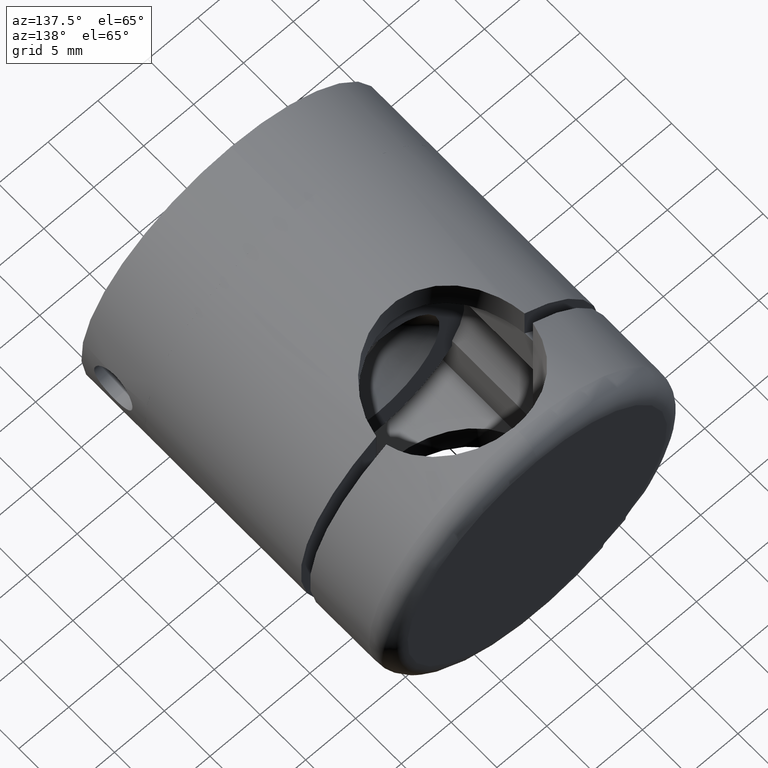
[diagram: clean part render]
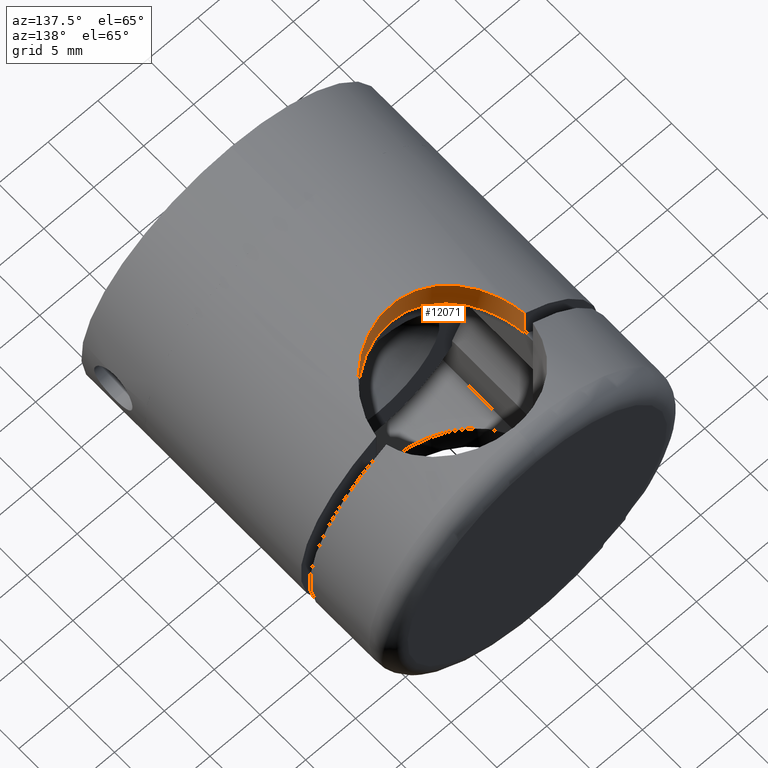
[diagram: same view with one face highlighted and labeled with its STEP entity id]
A machine part, auxiliary view. The second image highlights one B-rep face of the part: STEP entity #12071.
In plain terms, the highlighted cylindrical surface (partial cylindrical patch) has radius 7.5 mm, axis along (0, 0, 1).
Its self-contained STEP definition (entity closure, byte-faithful):
#162 = VERTEX_POINT ( 'NONE', #11002 ) ;
#305 = CARTESIAN_POINT ( 'NONE',  ( -7.433034373659253000, 0.0000000000000000000, 13.02881422079538300 ) ) ;
#383 = CARTESIAN_POINT ( 'NONE',  ( 2.454507526441689300, 6.090559381606842000, 14.79936083810742400 ) ) ;
#399 = CARTESIAN_POINT ( 'NONE',  ( -4.287906709055678600, 5.169351422859433500, 11.32184140605151700 ) ) ;
#444 = CARTESIAN_POINT ( 'NONE',  ( 3.081357233003476200, 5.841471669872911200, 14.68155682345833500 ) ) ;
#460 = CARTESIAN_POINT ( 'NONE',  ( -6.704379315736642500, 2.369065749826449400, 10.07358670783023800 ) ) ;
#619 = VECTOR ( 'NONE', #13140, 1000.000000000000000 ) ;
#675 = CARTESIAN_POINT ( 'NONE',  ( 7.371539659904849300, 0.4570923211348388900, 13.06389740744527500 ) ) ;
#690 = CARTESIAN_POINT ( 'NONE',  ( 0.9103202596978043900, 6.459001097932526700, 12.07444560178374700 ) ) ;
#747 = CARTESIAN_POINT ( 'NONE',  ( 6.385953543325390700, 2.958148152001800900, 10.28071647677968600 ) ) ;
#1056 = ORIENTED_EDGE ( 'NONE', *, *, #10695, .F. ) ;
#1254 = CARTESIAN_POINT ( 'NONE',  ( -7.433034373659253000, 0.0000000000000000000, -15.00000000000000000 ) ) ;
#1442 = ORIENTED_EDGE ( 'NONE', *, *, #4738, .F. ) ;
#1741 = CARTESIAN_POINT ( 'NONE',  ( 3.485431127852573100, 5.644717214453359100, 14.59090960189991300 ) ) ;
#1789 = CARTESIAN_POINT ( 'NONE',  ( 4.617013203556878900, 4.926937240679813500, 14.27609805589279900 ) ) ;
#1961 = CARTESIAN_POINT ( 'NONE',  ( -2.254629813134045900, 6.167207385889926600, 14.83573182107816300 ) ) ;
#2086 = CARTESIAN_POINT ( 'NONE',  ( 3.106584920228745900, 5.830092861634216000, 11.69630516733490600 ) ) ;
#2147 = CARTESIAN_POINT ( 'NONE',  ( 6.978373296587281300, 1.757275678786579300, 9.885540788002922200 ) ) ;
#2577 = B_SPLINE_CURVE_WITH_KNOTS ( 'NONE', 3,
 ( #12287, #16381, #12453, #12400, #4344, #4517, #460, #13687, #16326, #13629, #14971, #7010, #399, #9695, #11016, #12342, #4408, #9754, #8619, #3362, #690, #7230, #5904, #9856, #7342, #12635, #2086, #4690, #13967, #6012, #16683, #9919, #15308, #8680, #15196, #16742, #747, #13850, #10033, #2147, #11355, #15369, #16551, #3411 ),
 .UNSPECIFIED., .F., .F.,
 ( 4, 2, 2, 2, 2, 2, 2, 2, 2, 2, 2, 2, 2, 2, 2, 2, 2, 2, 2, 2, 2, 4 ),
 ( 0.0000000000000000000, 0.001381553282009188100, 0.002072329923013783400, 0.002763106564018378900, 0.004144659846027567600, 0.005526213128036757700, 0.006907766410045946900, 0.008289319692055137000, 0.009670872974064328000, 0.01105242625607351700, 0.01243397953808270600, 0.01312475617908730200, 0.01381553282009189900, 0.01450630946109649500, 0.01519708610210109200, 0.01657863938411028100, 0.01726941602511487500, 0.01796019266611947200, 0.01934174594812865600, 0.02003252258913325300, 0.02072329923013784700, 0.02210485251214703400 ),
 .UNSPECIFIED. ) ;
#3115 = CARTESIAN_POINT ( 'NONE',  ( 5.590732769843328700, 4.018891035258167000, 13.92240403225032700 ) ) ;
#3169 = CARTESIAN_POINT ( 'NONE',  ( -7.433034373659253000, 0.0000000000000000000, 13.02881422079538300 ) ) ;
#3247 = VECTOR ( 'NONE', #15234, 1000.000000000000000 ) ;
#3285 = CARTESIAN_POINT ( 'NONE',  ( -1.821521555345696300, 6.289625278845708300, 14.89575064599112000 ) ) ;
#3336 = CARTESIAN_POINT ( 'NONE',  ( 0.0000000000000000000, -1.000000000000000900, -15.00000000000000000 ) ) ;
#3362 = CARTESIAN_POINT ( 'NONE',  ( 0.4512396511243006400, 6.500644241078809700, 12.10039932273647000 ) ) ;
#3391 = DIRECTION ( 'NONE',  ( 1.000000000000000000, 0.0000000000000000000, 0.0000000000000000000 ) ) ;
#3411 = CARTESIAN_POINT ( 'NONE',  ( 7.433034373659253000, 0.0000000000000000000, 9.547774609824008600 ) ) ;
#3691 = EDGE_CURVE ( 'NONE', #162, #4016, #2577, .T. ) ;
#4016 = VERTEX_POINT ( 'NONE', #12044 ) ;
#4307 = CYLINDRICAL_SURFACE ( 'NONE', #5210, 7.500000000000000000 ) ;
#4344 = CARTESIAN_POINT ( 'NONE',  ( -6.979226702225446400, 1.755088937874512000, 9.884935751312431400 ) ) ;
#4408 = CARTESIAN_POINT ( 'NONE',  ( -1.844509065358021800, 6.284116486468724000, 11.96719748488499000 ) ) ;
#4441 = CARTESIAN_POINT ( 'NONE',  ( 4.260027718222359800, 5.188958396447426400, 14.38784380773072200 ) ) ;
#4517 = CARTESIAN_POINT ( 'NONE',  ( -6.802467336872967800, 2.166474150760043600, 10.00739717905748100 ) ) ;
#4620 = CARTESIAN_POINT ( 'NONE',  ( 0.9018572914626914500, 6.459649908640918700, 14.97969362655243900 ) ) ;
#4690 = CARTESIAN_POINT ( 'NONE',  ( 3.512054756203036200, 5.630724677934601600, 11.58101445571368900 ) ) ;
#4738 = EDGE_CURVE ( 'NONE', #10849, #5627, #17077, .T. ) ;
#5121 = LINE ( 'NONE', #11222, #3247 ) ;
#5210 = AXIS2_PLACEMENT_3D ( 'NONE', #3336, #12607, #3391 ) ;
#5627 = VERTEX_POINT ( 'NONE', #10349 ) ;
#5727 = CARTESIAN_POINT ( 'NONE',  ( -6.706805909233553500, 2.364343839977608200, 13.41762833829743700 ) ) ;
#5837 = CARTESIAN_POINT ( 'NONE',  ( -7.269735469085090600, 0.8980109817158853400, 13.12158371556265000 ) ) ;
#5904 = CARTESIAN_POINT ( 'NONE',  ( 1.820740294575647500, 6.279237296299610800, 11.96431512509023400 ) ) ;
#5942 = CARTESIAN_POINT ( 'NONE',  ( 1.802127842783203000, 6.283818584592300900, 14.89298984979847700 ) ) ;
#6012 = CARTESIAN_POINT ( 'NONE',  ( 4.281616437942682700, 5.173871608858009500, 11.32429740889832500 ) ) ;
#7010 = CARTESIAN_POINT ( 'NONE',  ( -4.640208607627381600, 4.908487579418744100, 11.18069312086736200 ) ) ;
#7049 = CARTESIAN_POINT ( 'NONE',  ( -5.594357989546198300, 4.014793026553872900, 13.92093376388389500 ) ) ;
#7105 = CARTESIAN_POINT ( 'NONE',  ( 6.988910178478321600, 1.758478929428913600, 13.27330242586715900 ) ) ;
#7230 = CARTESIAN_POINT ( 'NONE',  ( 1.594801879411987800, 6.332151938821762200, 11.99663856489961900 ) ) ;
#7342 = CARTESIAN_POINT ( 'NONE',  ( 2.476931936827229100, 6.082799924265901700, 11.84574986285529800 ) ) ;
#8334 = CARTESIAN_POINT ( 'NONE',  ( 2.239964844302980000, 6.161301238690727500, 14.83345438271954800 ) ) ;
#8381 = CARTESIAN_POINT ( 'NONE',  ( -7.061022049355219800, 1.538177000883971900, 13.23435759178614600 ) ) ;
#8438 = CARTESIAN_POINT ( 'NONE',  ( 0.4485332192687759800, 6.500461576475863100, 15.00023078814744600 ) ) ;
#8447 = FACE_OUTER_BOUND ( 'NONE', #12643, .T. ) ;
#8494 = CARTESIAN_POINT ( 'NONE',  ( -5.285270702362500300, 4.339607343499515900, 14.04242242306369600 ) ) ;
#8619 = CARTESIAN_POINT ( 'NONE',  ( -0.4724070979116879500, 6.499340823553638700, 12.09959141980714400 ) ) ;
#8680 = CARTESIAN_POINT ( 'NONE',  ( 5.593216513542786900, 4.001433164880639400, 10.73101403653626200 ) ) ;
#8692 = LINE ( 'NONE', #1254, #619 ) ;
#9681 = CARTESIAN_POINT ( 'NONE',  ( 2.875204067168545900, 5.930645071967627600, 14.72341298700827900 ) ) ;
#9695 = CARTESIAN_POINT ( 'NONE',  ( -3.530245071645919300, 5.632074385772681600, 11.58048386309773300 ) ) ;
#9742 = CARTESIAN_POINT ( 'NONE',  ( 3.684249379242929400, 5.536556207957905200, 14.54186294497605700 ) ) ;
#9754 = CARTESIAN_POINT ( 'NONE',  ( -0.9427413185010404800, 6.454649923841113700, 12.07175497352462700 ) ) ;
#9795 = CARTESIAN_POINT ( 'NONE',  ( -7.371552118982877200, 0.4569997123795623800, 13.06389029944958000 ) ) ;
#9856 = CARTESIAN_POINT ( 'NONE',  ( 2.261244462426558000, 6.154660321585917700, 11.88893204261424000 ) ) ;
#9899 = CARTESIAN_POINT ( 'NONE',  ( -4.621271761972298700, 4.923625602787772900, 14.27471755261766800 ) ) ;
#9919 = CARTESIAN_POINT ( 'NONE',  ( 5.130938656266875100, 4.474663636909650900, 10.95975385441399100 ) ) ;
#10033 = CARTESIAN_POINT ( 'NONE',  ( 6.801216285787243800, 2.169182870913697300, 10.00824997548193800 ) ) ;
#10349 = CARTESIAN_POINT ( 'NONE',  ( 7.433034373659253000, 0.0000000000000000000, 13.02881422079538300 ) ) ;
#10695 = EDGE_CURVE ( 'NONE', #162, #10849, #8692, .T. ) ;
#10849 = VERTEX_POINT ( 'NONE', #305 ) ;
#11000 = CARTESIAN_POINT ( 'NONE',  ( -3.504591401709834700, 5.645732149465732000, 14.59016996309915500 ) ) ;
#11002 = CARTESIAN_POINT ( 'NONE',  ( -7.433034373659253000, 0.0000000000000000000, 9.547774609824008600 ) ) ;
#11016 = CARTESIAN_POINT ( 'NONE',  ( -3.120889328124960100, 5.834713795883161900, 11.69855704201667200 ) ) ;
#11054 = CARTESIAN_POINT ( 'NONE',  ( 5.281274963558811200, 4.343550386780559200, 14.04392827461645300 ) ) ;
#11222 = CARTESIAN_POINT ( 'NONE',  ( 7.433034373659253000, 0.0000000000000000000, -15.00000000000000000 ) ) ;
#11355 = CARTESIAN_POINT ( 'NONE',  ( 7.057675012871475100, 1.547514016276543100, 9.828872094880608800 ) ) ;
#11400 = CARTESIAN_POINT ( 'NONE',  ( 7.433034373659253000, 0.0000000000000000000, 13.02881422079538300 ) ) ;
#12044 = CARTESIAN_POINT ( 'NONE',  ( 7.433034373659253000, 0.0000000000000000000, 9.547774609824008600 ) ) ;
#12071 = ADVANCED_FACE ( 'NONE', ( #8447 ), #4307, .F. ) ;
#12287 = CARTESIAN_POINT ( 'NONE',  ( -7.433034373659253000, 0.0000000000000000000, 9.547774609824008600 ) ) ;
#12342 = CARTESIAN_POINT ( 'NONE',  ( -2.279664997857652000, 6.159356840358118000, 11.89114437559585200 ) ) ;
#12387 = CARTESIAN_POINT ( 'NONE',  ( 6.141799977416648700, 3.327106789183706900, 13.68824020750751000 ) ) ;
#12400 = CARTESIAN_POINT ( 'NONE',  ( -7.058358826263528000, 1.545592304792543900, 9.828379518017310800 ) ) ;
#12453 = CARTESIAN_POINT ( 'NONE',  ( -7.267922950506672000, 0.9050391060404532300, 9.675597607765430700 ) ) ;
#12552 = CARTESIAN_POINT ( 'NONE',  ( -0.4638388370897875700, 6.499530614790875100, 14.99976530748668700 ) ) ;
#12607 = DIRECTION ( 'NONE',  ( -0.0000000000000000000, -0.0000000000000000000, 1.000000000000000000 ) ) ;
#12635 = CARTESIAN_POINT ( 'NONE',  ( 2.899602612185831200, 5.920516691567248000, 11.74943770247820000 ) ) ;
#12643 = EDGE_LOOP ( 'NONE', ( #1056, #14486, #13798, #1442 ) ) ;
#13140 = DIRECTION ( 'NONE',  ( -0.0000000000000000000, -0.0000000000000000000, 1.000000000000000000 ) ) ;
#13469 = EDGE_CURVE ( 'NONE', #5627, #4016, #5121, .T. ) ;
#13629 = CARTESIAN_POINT ( 'NONE',  ( -5.601634317130489600, 4.006335720115676400, 10.72980249393706000 ) ) ;
#13687 = CARTESIAN_POINT ( 'NONE',  ( -6.387786704836729600, 2.955174478734803300, 10.27957127954841500 ) ) ;
#13725 = CARTESIAN_POINT ( 'NONE',  ( 6.385256789243127800, 2.959327451426121000, 13.57512415531077800 ) ) ;
#13777 = CARTESIAN_POINT ( 'NONE',  ( -6.982046201704013900, 1.747983388432222000, 13.27633011747889900 ) ) ;
#13798 = ORIENTED_EDGE ( 'NONE', *, *, #13469, .F. ) ;
#13833 = CARTESIAN_POINT ( 'NONE',  ( -4.265662807184604300, 5.184823159216672500, 14.38608151167166600 ) ) ;
#13850 = CARTESIAN_POINT ( 'NONE',  ( 6.702901141645744700, 2.372009956687625400, 10.07457193972448700 ) ) ;
#13900 = CARTESIAN_POINT ( 'NONE',  ( 1.577532041899896800, 6.335790583856103300, 14.91852990702046900 ) ) ;
#13967 = CARTESIAN_POINT ( 'NONE',  ( 3.710195494336569100, 5.521823509179438500, 11.51889478967124000 ) ) ;
#14486 = ORIENTED_EDGE ( 'NONE', *, *, #3691, .T. ) ;
#14971 = CARTESIAN_POINT ( 'NONE',  ( -5.296296914780158200, 4.328320597424202300, 10.88525027621322900 ) ) ;
#15068 = CARTESIAN_POINT ( 'NONE',  ( 6.808414343375437400, 2.176991070354392700, 13.36790911943963400 ) ) ;
#15125 = CARTESIAN_POINT ( 'NONE',  ( -6.805214662091630700, 2.160606788052258100, 13.36783318095569400 ) ) ;
#15183 = CARTESIAN_POINT ( 'NONE',  ( -6.388103578211718600, 2.955041413808474600, 13.57380254716004900 ) ) ;
#15196 = CARTESIAN_POINT ( 'NONE',  ( 5.736684297029831300, 3.836132015414672700, 10.65479257470046900 ) ) ;
#15234 = DIRECTION ( 'NONE',  ( 0.0000000000000000000, 0.0000000000000000000, -1.000000000000000000 ) ) ;
#15237 = CARTESIAN_POINT ( 'NONE',  ( -0.9279062625338172500, 6.456243521407138500, 14.97799446027686100 ) ) ;
#15308 = CARTESIAN_POINT ( 'NONE',  ( 5.290419277999674800, 4.320701883502318100, 10.88348276438546800 ) ) ;
#15369 = CARTESIAN_POINT ( 'NONE',  ( 7.267667455086091800, 0.9061549685232079800, 9.675795716198994300 ) ) ;
#16326 = CARTESIAN_POINT ( 'NONE',  ( -6.146124214716414800, 3.320516346761881900, 10.42746976591293300 ) ) ;
#16381 = CARTESIAN_POINT ( 'NONE',  ( -7.370873389609881700, 0.4620447311394678700, 9.596167533832090900 ) ) ;
#16421 = CARTESIAN_POINT ( 'NONE',  ( 7.269481033751776300, 0.8996623349596458700, 13.12174029126060900 ) ) ;
#16483 = CARTESIAN_POINT ( 'NONE',  ( -6.144177921718754700, 3.323663733529298400, 13.68715879355192500 ) ) ;
#16539 = CARTESIAN_POINT ( 'NONE',  ( -3.094862868402032500, 5.846461942668952400, 14.68346410378049400 ) ) ;
#16551 = CARTESIAN_POINT ( 'NONE',  ( 7.370797457541449700, 0.4626091368141630500, 9.596226647677745800 ) ) ;
#16683 = CARTESIAN_POINT ( 'NONE',  ( 4.635964713893531400, 4.911998384491692300, 11.18252097455661700 ) ) ;
#16742 = CARTESIAN_POINT ( 'NONE',  ( 6.144316000566987200, 3.322991934113022500, 10.42851796852745100 ) ) ;
#17077 = B_SPLINE_CURVE_WITH_KNOTS ( 'NONE', 3,
 ( #3169, #9795, #5837, #8381, #13777, #15125, #5727, #15183, #16483, #7049, #8494, #9899, #13833, #11000, #16539, #1961, #3285, #15237, #12552, #8438, #4620, #13900, #5942, #8334, #383, #9681, #444, #1741, #9742, #4441, #1789, #11054, #3115, #12387, #13725, #15068, #7105, #16421, #675, #11400 ),
 .UNSPECIFIED., .F., .F.,
 ( 4, 2, 2, 2, 2, 2, 2, 2, 2, 2, 2, 2, 2, 2, 2, 2, 2, 2, 2, 4 ),
 ( 0.0000000000000000000, 0.001365088356597057400, 0.002047632534895586800, 0.002730176713194116600, 0.004095265069791177000, 0.005460353426388237500, 0.006825441782985297100, 0.008190530139582357500, 0.009555618496179420600, 0.01092070685277648400, 0.01228579520937354500, 0.01296833938767207700, 0.01365088356597060800, 0.01433342774426913900, 0.01501597192256766900, 0.01638106027916473200, 0.01774614863576179000, 0.01911123699235885200, 0.02047632534895591300, 0.02184141370555297800 ),
 .UNSPECIFIED. ) ;